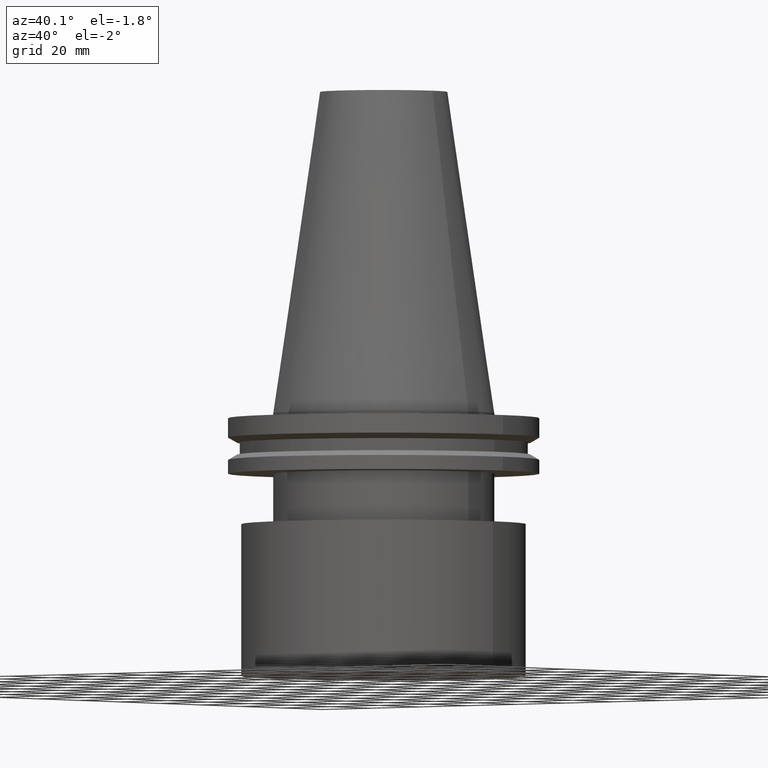
[diagram: clean part render]
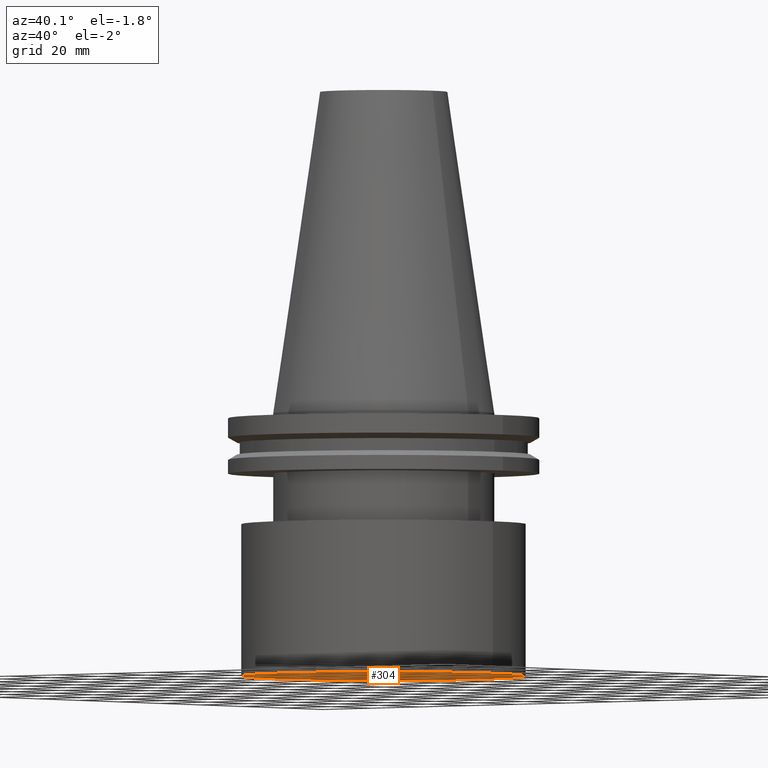
[diagram: same view with one face highlighted and labeled with its STEP entity id]
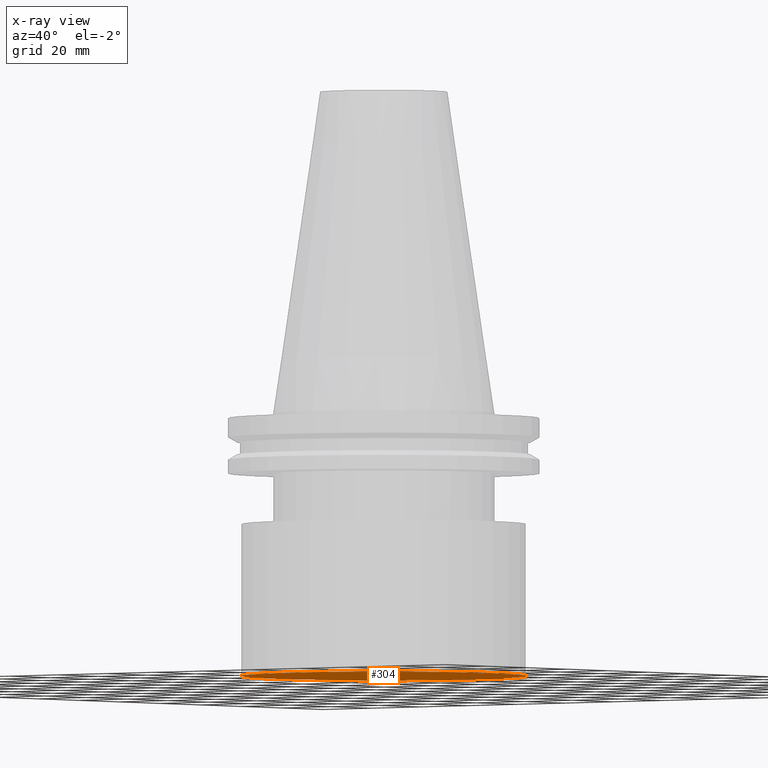
[diagram: x-ray of the same camera — body ghosted, the highlighted face saturated]
A machine part, auxiliary view. The second image highlights one B-rep face of the part: STEP entity #304.
The next image is the same camera in x-ray: the body ghosted, the highlighted face saturated — about 0% of this face is hidden behind the body in this view.
In plain terms, the highlighted planar face has unit normal (0, -0, 1).
Its self-contained STEP definition (entity closure, byte-faithful):
#20 = DIRECTION ( 'NONE',  ( 1.000000000000000000, 0.000000000000000000, 0.000000000000000000 ) ) ;
#43 = DIRECTION ( 'NONE',  ( -0.000000000000000000, -0.000000000000000000, 1.000000000000000000 ) ) ;
#63 = EDGE_LOOP ( 'NONE', ( #378 ) ) ;
#72 = CIRCLE ( 'NONE', #356, 45.00000000000000000 ) ;
#107 = DIRECTION ( 'NONE',  ( 0.000000000000000000, -0.000000000000000000, 1.000000000000000000 ) ) ;
#114 = CARTESIAN_POINT ( 'NONE',  ( 45.00000000000000000, 0.000000000000000000, -83.00000000000001421 ) ) ;
#141 = VERTEX_POINT ( 'NONE', #114 ) ;
#198 = CARTESIAN_POINT ( 'NONE',  ( 0.000000000000000000, 45.00000000000000000, -83.00000000000001421 ) ) ;
#227 = DIRECTION ( 'NONE',  ( 1.000000000000000000, 0.000000000000000000, 0.000000000000000000 ) ) ;
#236 = EDGE_CURVE ( 'NONE', #141, #141, #72, .T. ) ;
#254 = PLANE ( 'NONE',  #342 ) ;
#262 = FACE_OUTER_BOUND ( 'NONE', #63, .T. ) ;
#304 = ADVANCED_FACE ( 'NONE', ( #262 ), #254, .F. ) ;
#342 = AXIS2_PLACEMENT_3D ( 'NONE', #198, #107, #20 ) ;
#356 = AXIS2_PLACEMENT_3D ( 'NONE', #357, #43, #227 ) ;
#357 = CARTESIAN_POINT ( 'NONE',  ( 0.000000000000000000, 0.000000000000000000, -83.00000000000001421 ) ) ;
#378 = ORIENTED_EDGE ( 'NONE', *, *, #236, .F. ) ;